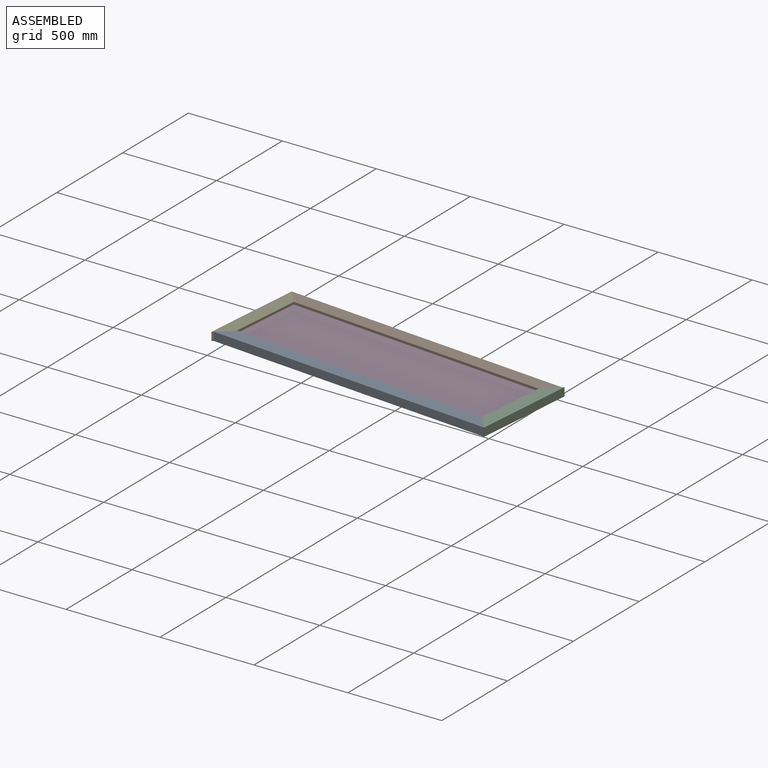
[diagram: assembled view]
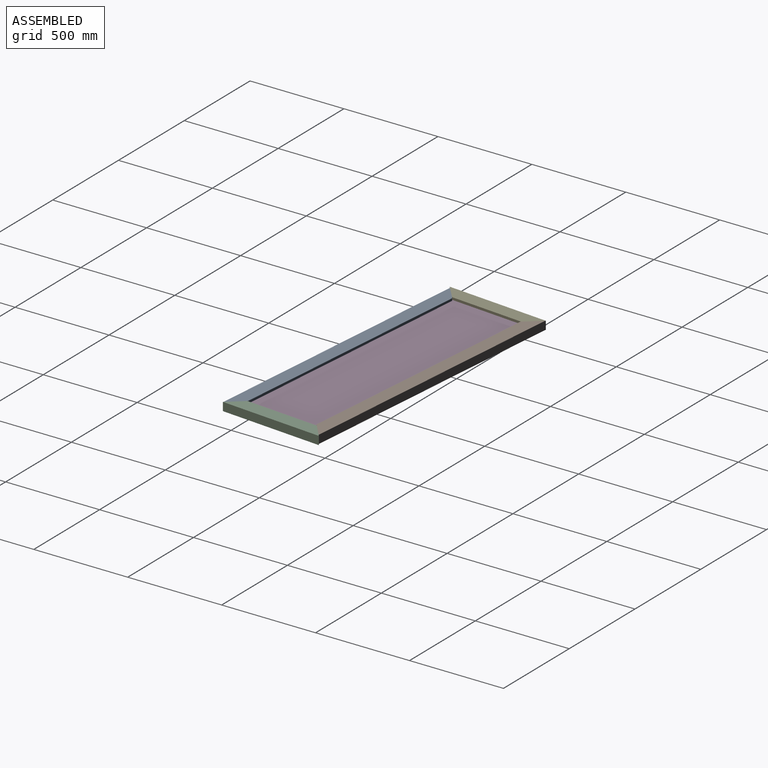
[diagram: assembled view, second angle]
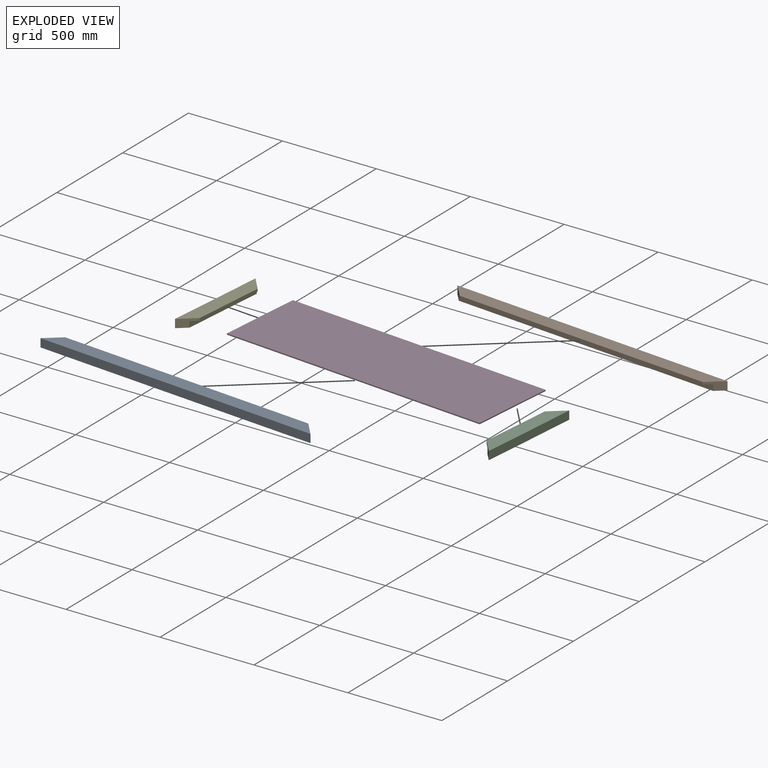
[diagram: exploded view]
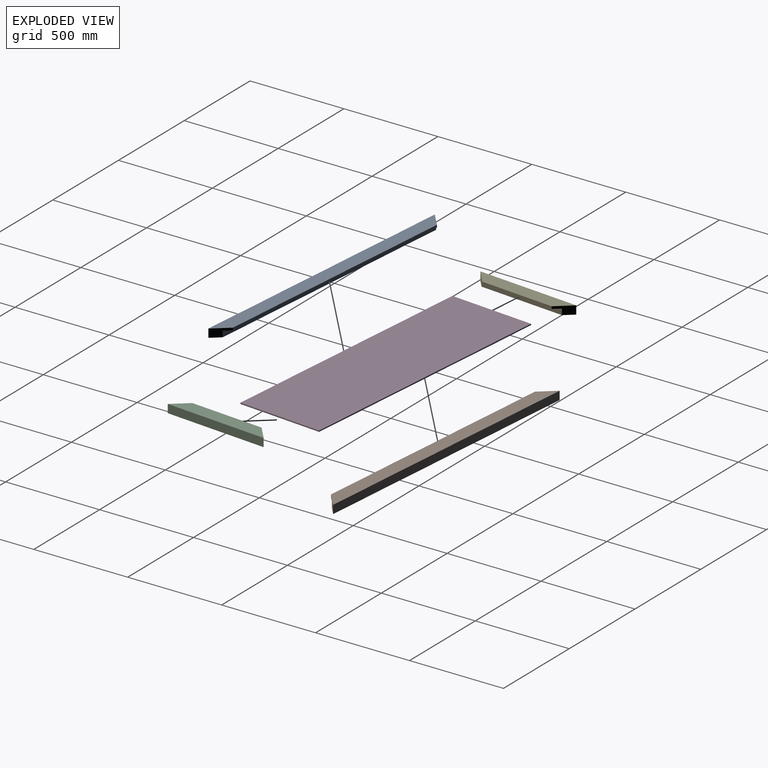
[diagram: exploded view, second angle]
ASSEMBLY  parts=5 mates=11
PART A: 8 faces, bbox 76.2x1536.7x44.5 mm
  f0: plane 1384.3x12.7mm, normal (-1,0,0), area 17580.6mm2, adj f1,f2,f5,f7
  f1: plane 76.2x76.2mm, normal (-0.71,-0.71,0), area 3364.5mm2, adj f0,f3,f4,f5,f6,f7
  f2: plane 76.2x76.2mm, normal (-0.71,0.71,0), area 3364.5mm2, adj f0,f3,f4,f5,f6,f7
  f3: plane 1536.7x44.45mm, normal (0,0,-1), area 66330.5mm2, adj f1,f2,f4,f6
  f4: plane 1536.7x44.45mm, normal (1,0,0), area 68306.3mm2, adj f1,f2,f3,f5
  f5: plane 1536.7x76.2mm, normal (0,0,1), area 111290.1mm2, adj f0,f1,f2,f4
  f6: plane 1447.8x31.75mm, normal (-1,0,0), area 45967.7mm2, adj f1,f2,f3,f7
  f7: plane 1447.8x31.75mm, normal (0,0,-1), area 44959.6mm2, adj f0,f1,f2,f6
PART B: same geometry as A
PART C: 8 faces, bbox 546.1x76.2x44.5 mm
  f0: plane 76.2x76.2mm, normal (-0.71,-0.71,0), area 3364.5mm2, adj f2,f3,f4,f5,f6,f7
  f1: plane 76.2x76.2mm, normal (0.71,-0.71,0), area 3364.5mm2, adj f2,f3,f4,f5,f6,f7
  f2: plane 546.1x44.45mm, normal (0,0,-1), area 22298.3mm2, adj f0,f1,f4,f7
  f3: plane 393.7x12.7mm, normal (0,-1,0), area 5000mm2, adj f0,f1,f5,f6
  f4: plane 546.1x44.45mm, normal (0,1,0), area 24274.1mm2, adj f0,f1,f2,f5
  f5: plane 546.1x76.2mm, normal (0,0,1), area 35806.4mm2, adj f0,f1,f3,f4
  f6: plane 457.2x31.75mm, normal (0,0,-1), area 13508mm2, adj f0,f1,f3,f7
  f7: plane 457.2x31.75mm, normal (0,-1,0), area 14516.1mm2, adj f0,f1,f2,f6
PART D: 6 faces, bbox 447.7x1438.3x6.4 mm
  f0: plane 1438.28x6.35mm, normal (-1,0,0), area 9133mm2, adj f1,f3,f4,f5
  f1: plane 447.68x6.35mm, normal (0,-1,0), area 2842.7mm2, adj f0,f2,f4,f5
  f2: plane 1438.28x6.35mm, normal (1,0,0), area 9133mm2, adj f1,f3,f4,f5
  f3: plane 447.68x6.35mm, normal (0,1,0), area 2842.7mm2, adj f0,f2,f4,f5
  f4: plane 1438.28x447.68mm, normal (0,0,1), area 643879.8mm2, adj f0,f1,f2,f3
  f5: plane 1438.28x447.68mm, normal (0,0,-1), area 643879.8mm2, adj f0,f1,f2,f3
PART E: same geometry as C
PLACE A rot(axis=(0,0,-1),95deg) t=(-1086.44,-726.53,-73.39)mm
PLACE B rot(axis=(0,0,1),85deg) t=(-931.54,-354.44,-73.39)mm
PLACE C rot(axis=(0,0,-1),95deg) t=(-310.92,-557.7,-73.39)mm
PLACE D rot(axis=(0,0,1),85deg) t=(-899.99,-539.95,-47.99)mm
PLACE E rot(axis=(0,0,1),85deg) t=(-1707.06,-523.28,-73.39)mm
MATE planar E.f1 <-> B.f2  axis (0.77,0.64,0) through (-1729.55,-235.22,-48.47)mm
MATE planar D.f4 <-> E.f6  axis (0,0,1) through (-1018.48,-539.66,-41.64)mm
MATE planar A.f2 <-> C.f1  axis (0.77,0.64,0) through (-289.97,-843.91,-48.47)mm
MATE planar C.f5 <-> A.f5  axis (0,0,1) through (-274.46,-601.68,-28.94)mm
MATE planar B.f1 <-> C.f0  axis (0.64,-0.77,0) through (-254.3,-365.99,-48.47)mm
MATE planar A.f1 <-> E.f0  axis (-0.64,0.77,0) through (-1763.68,-714.98,-48.47)mm
MATE planar B.f6 <-> D.f2  axis (-0.09,-1,0) through (-992.53,-317.24,-57.51)mm
MATE planar D.f4 <-> A.f7  axis (0,0,1) through (-1018.48,-539.66,-41.64)mm
MATE planar D.f4 <-> B.f7  axis (0,0,1) through (-1018.48,-539.66,-41.64)mm
MATE planar D.f0 <-> A.f6  axis (-0.09,-1,0) through (-1037.99,-762.64,-44.81)mm
MATE planar E.f7 <-> D.f3  axis (1,-0.09,0) through (-1735.15,-480.03,-57.51)mm
